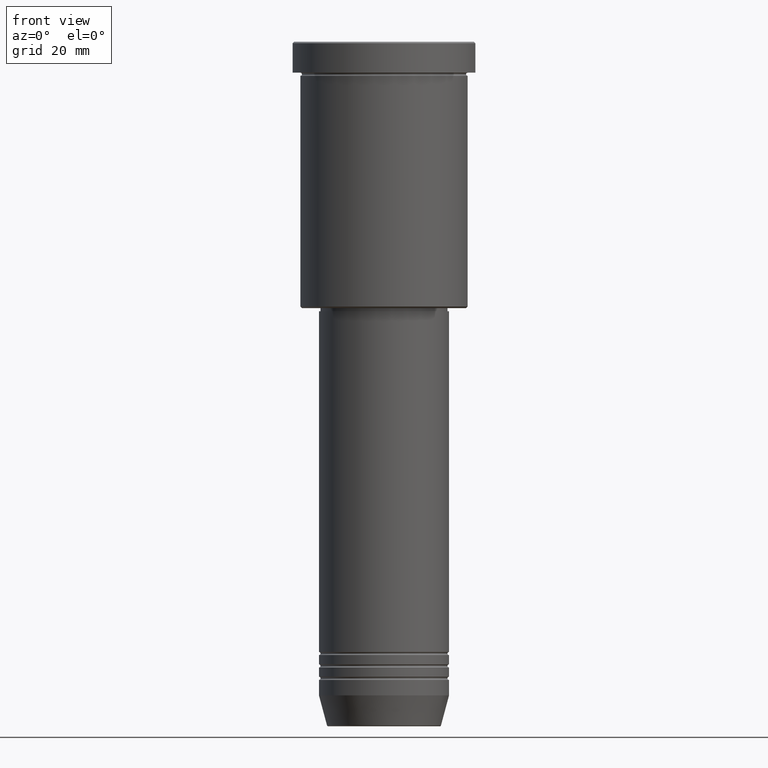
[diagram: clean part render]
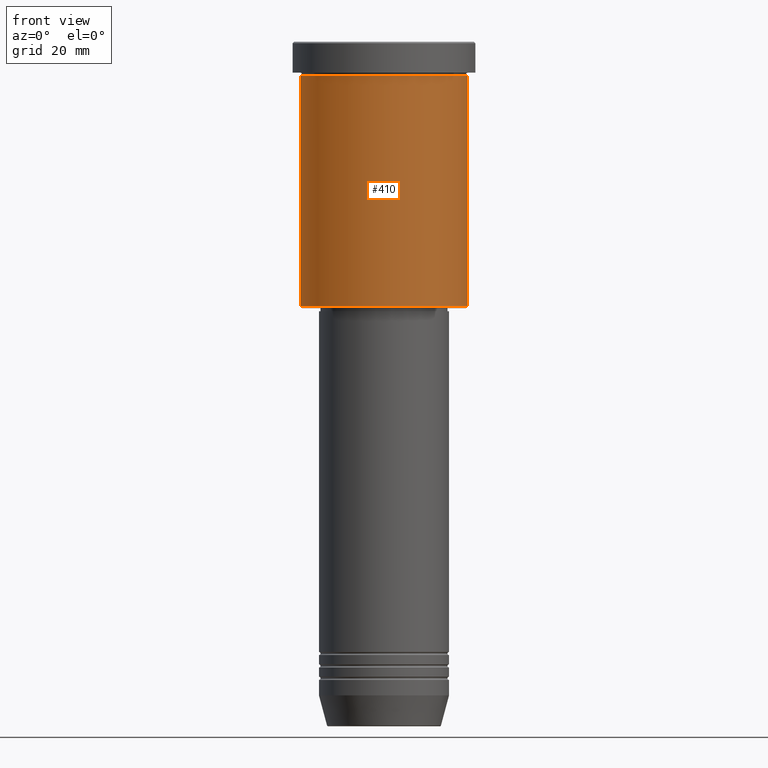
[diagram: same view with one face highlighted and labeled with its STEP entity id]
A machine part, front view. The second image highlights one B-rep face of the part: STEP entity #410.
In plain terms, the highlighted cylindrical surface (partial cylindrical patch) has radius 27 mm, axis along (-0, -0, 1).
Its self-contained STEP definition (entity closure, byte-faithful):
#2 = ORIENTED_EDGE ( 'NONE', *, *, #758, .T. ) ;
#37 = CARTESIAN_POINT ( 'NONE',  ( -27.00000000000000355, 3.306546357697854128E-15, -85.49999999999992895 ) ) ;
#93 = CARTESIAN_POINT ( 'NONE',  ( 0.000000000000000000, 0.000000000000000000, -85.49999999999992895 ) ) ;
#98 = DIRECTION ( 'NONE',  ( -1.000000000000000000, 0.000000000000000000, 0.000000000000000000 ) ) ;
#105 = AXIS2_PLACEMENT_3D ( 'NONE', #956, #777, #222 ) ;
#111 = VERTEX_POINT ( 'NONE', #37 ) ;
#133 = DIRECTION ( 'NONE',  ( -0.000000000000000000, -0.000000000000000000, 1.000000000000000000 ) ) ;
#162 = AXIS2_PLACEMENT_3D ( 'NONE', #297, #666, #1030 ) ;
#222 = DIRECTION ( 'NONE',  ( 1.000000000000000000, 0.000000000000000000, 0.000000000000000000 ) ) ;
#239 = EDGE_CURVE ( 'NONE', #830, #517, #951, .T. ) ;
#244 = CARTESIAN_POINT ( 'NONE',  ( -27.00000000000000355, 3.306546357697854128E-15, 0.000000000000000000 ) ) ;
#284 = VERTEX_POINT ( 'NONE', #470 ) ;
#297 = CARTESIAN_POINT ( 'NONE',  ( 0.000000000000000000, 0.000000000000000000, -10.99999999999999289 ) ) ;
#355 = CARTESIAN_POINT ( 'NONE',  ( 27.00000000000000355, 0.000000000000000000, 0.000000000000000000 ) ) ;
#369 = CARTESIAN_POINT ( 'NONE',  ( 27.00000000000000355, 0.000000000000000000, -85.49999999999992895 ) ) ;
#410 = ADVANCED_FACE ( 'NONE', ( #506 ), #870, .T. ) ;
#413 = VECTOR ( 'NONE', #979, 1000.000000000000000 ) ;
#470 = CARTESIAN_POINT ( 'NONE',  ( -27.00000000000000355, 3.306546357697854128E-15, -10.99999999999999289 ) ) ;
#506 = FACE_OUTER_BOUND ( 'NONE', #916, .T. ) ;
#510 = CIRCLE ( 'NONE', #855, 27.00000000000000355 ) ;
#517 = VERTEX_POINT ( 'NONE', #942 ) ;
#555 = DIRECTION ( 'NONE',  ( -0.000000000000000000, -0.000000000000000000, 1.000000000000000000 ) ) ;
#564 = VECTOR ( 'NONE', #133, 1000.000000000000000 ) ;
#615 = ORIENTED_EDGE ( 'NONE', *, *, #239, .T. ) ;
#625 = ORIENTED_EDGE ( 'NONE', *, *, #1096, .F. ) ;
#662 = CIRCLE ( 'NONE', #162, 27.00000000000000355 ) ;
#666 = DIRECTION ( 'NONE',  ( -0.000000000000000000, -0.000000000000000000, 1.000000000000000000 ) ) ;
#712 = LINE ( 'NONE', #244, #413 ) ;
#758 = EDGE_CURVE ( 'NONE', #111, #830, #510, .T. ) ;
#777 = DIRECTION ( 'NONE',  ( -0.000000000000000000, -0.000000000000000000, 1.000000000000000000 ) ) ;
#830 = VERTEX_POINT ( 'NONE', #369 ) ;
#855 = AXIS2_PLACEMENT_3D ( 'NONE', #93, #555, #98 ) ;
#870 = CYLINDRICAL_SURFACE ( 'NONE', #105, 27.00000000000000355 ) ;
#916 = EDGE_LOOP ( 'NONE', ( #625, #2, #615, #983 ) ) ;
#923 = EDGE_CURVE ( 'NONE', #284, #517, #662, .T. ) ;
#942 = CARTESIAN_POINT ( 'NONE',  ( 27.00000000000000355, 0.000000000000000000, -10.99999999999999289 ) ) ;
#951 = LINE ( 'NONE', #355, #564 ) ;
#956 = CARTESIAN_POINT ( 'NONE',  ( 0.000000000000000000, 0.000000000000000000, 0.000000000000000000 ) ) ;
#979 = DIRECTION ( 'NONE',  ( -0.000000000000000000, -0.000000000000000000, 1.000000000000000000 ) ) ;
#983 = ORIENTED_EDGE ( 'NONE', *, *, #923, .F. ) ;
#1030 = DIRECTION ( 'NONE',  ( 1.000000000000000000, 0.000000000000000000, 0.000000000000000000 ) ) ;
#1096 = EDGE_CURVE ( 'NONE', #111, #284, #712, .T. ) ;